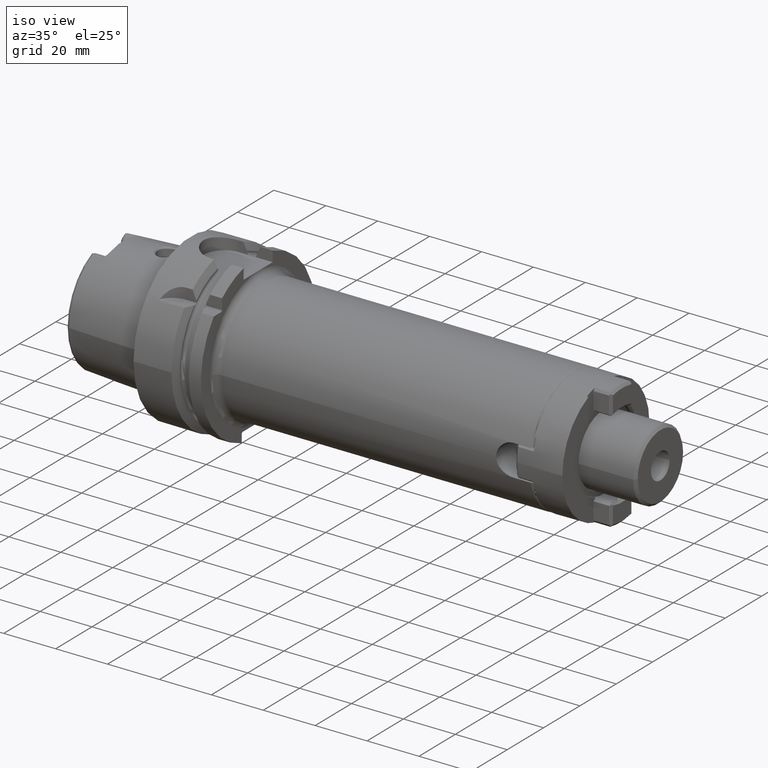
[diagram: clean part render]
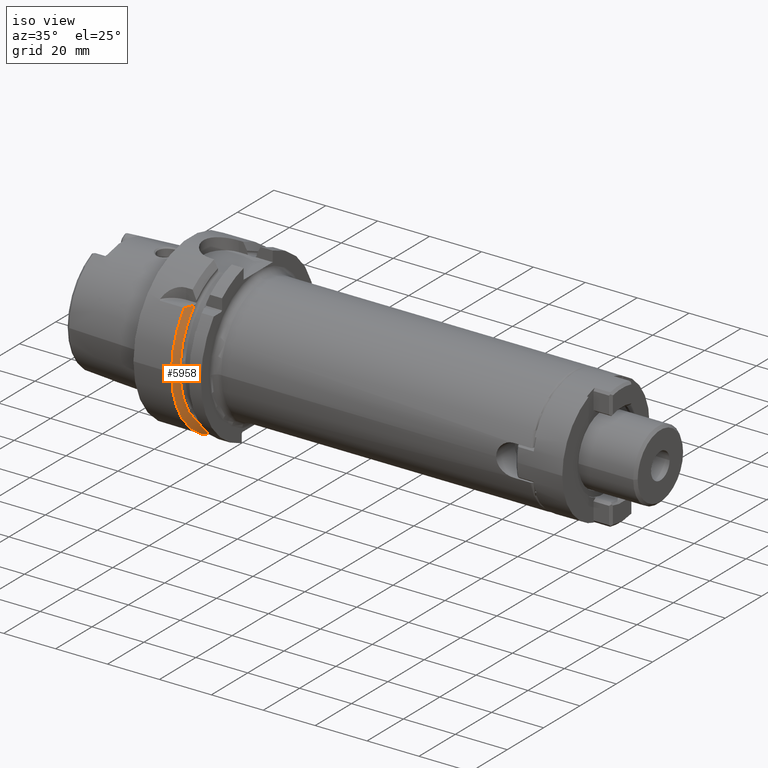
[diagram: same view with one face highlighted and labeled with its STEP entity id]
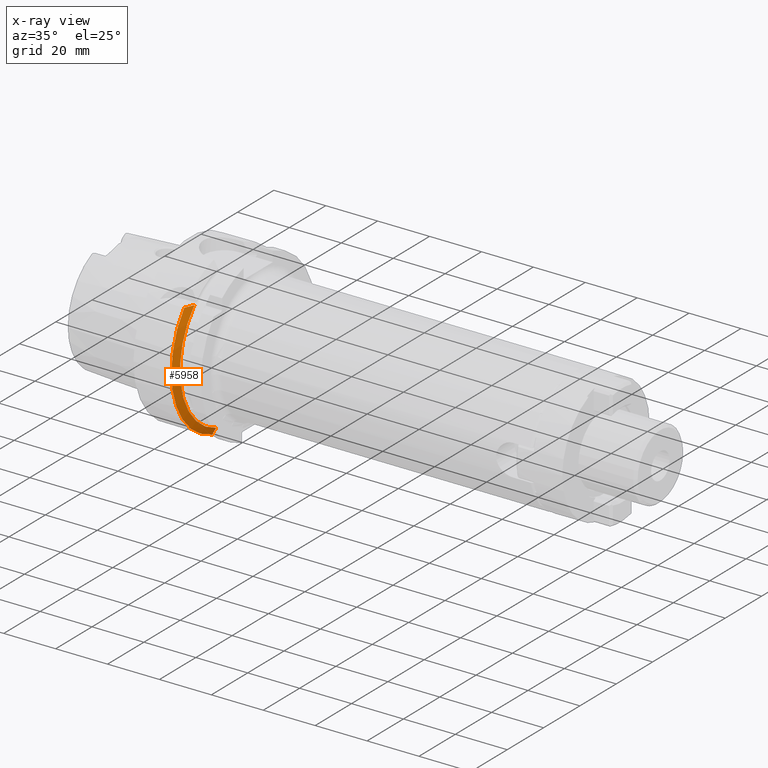
[diagram: x-ray of the same camera — body ghosted, the highlighted face saturated]
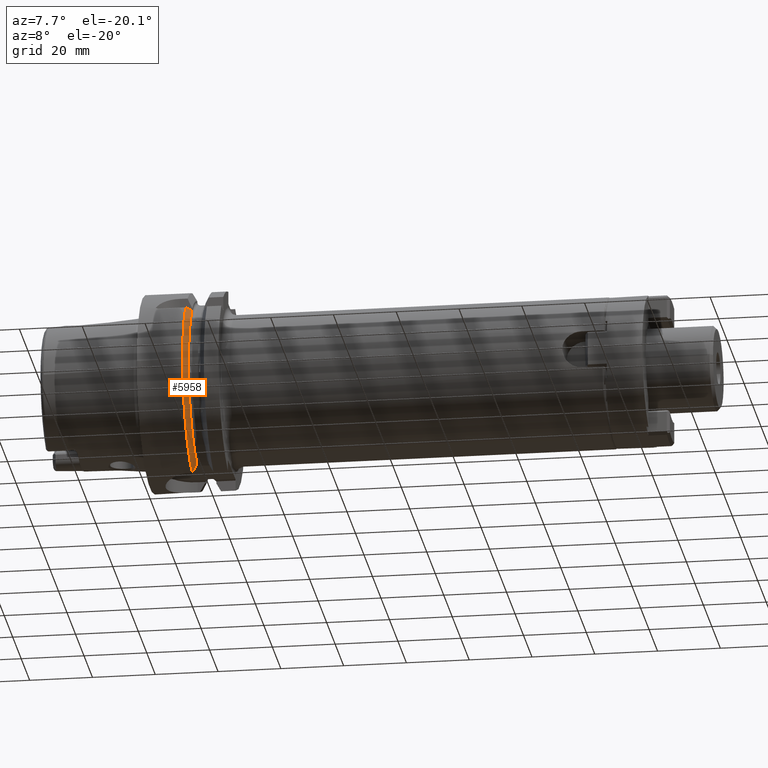
[diagram: same view with one face highlighted and labeled with its STEP entity id]
A machine part, iso view. The second image highlights one B-rep face of the part: STEP entity #5958.
The next image is the same camera in x-ray: the body ghosted, the highlighted face saturated — about 0% of this face is hidden behind the body in this view.
A second angle (auxiliary view) of the same face is appended — the face is thin or edge-on in the first view.
In plain terms, the highlighted conical surface has half-angle 60 deg.
Its self-contained STEP definition (entity closure, byte-faithful):
#1106=CARTESIAN_POINT('',(1.462250092524E1,0.E0,0.E0));
#1107=DIRECTION('',(1.E0,0.E0,0.E0));
#1108=DIRECTION('',(0.E0,-7.764663384879E-1,6.301587301587E-1));
#1109=AXIS2_PLACEMENT_3D('',#1106,#1107,#1108);
#2168=CARTESIAN_POINT('',(1.462250092524E1,0.E0,0.E0));
#2169=DIRECTION('',(1.E0,0.E0,0.E0));
#2170=DIRECTION('',(0.E0,-1.E0,0.E0));
#2171=AXIS2_PLACEMENT_3D('',#2168,#2169,#2170);
#2323=CARTESIAN_POINT('',(1.6125E1,-2.100115501712E1,1.985E1));
#2324=CARTESIAN_POINT('',(1.597384221917E1,-2.136140971936E1,1.985E1));
#2325=CARTESIAN_POINT('',(1.566115300621E1,-2.209786160622E1,1.985E1));
#2326=CARTESIAN_POINT('',(1.516255881786E1,-2.324577082409E1,1.985E1));
#2327=CARTESIAN_POINT('',(1.480632619355E1,-2.404863363206E1,1.985E1));
#2328=CARTESIAN_POINT('',(1.462250092524E1,-2.445868966237E1,1.985E1));
#2330=CARTESIAN_POINT('',(1.6125E1,0.E0,0.E0));
#2331=DIRECTION('',(1.E0,0.E0,0.E0));
#2332=DIRECTION('',(0.E0,-7.267440361428E-1,6.869083679290E-1));
#2333=AXIS2_PLACEMENT_3D('',#2330,#2331,#2332);
#2335=CARTESIAN_POINT('',(1.6125E1,-9.0175E0,-2.745461174016E1));
#2336=CARTESIAN_POINT('',(1.596600098125E1,-9.0175E0,-2.774448053791E1));
#2337=CARTESIAN_POINT('',(1.564270948849E1,-9.0175E0,-2.833297398512E1));
#2338=CARTESIAN_POINT('',(1.514210518984E1,-9.0175E0,-2.924158789478E1));
#2339=CARTESIAN_POINT('',(1.479749126019E1,-9.0175E0,-2.986536377611E1));
#2340=CARTESIAN_POINT('',(1.462250092524E1,-9.0175E0,-3.018169467989E1));
#3214=CARTESIAN_POINT('',(1.462250092524E1,-3.15E1,0.E0));
#3215=VERTEX_POINT('',#3214);
#3374=CARTESIAN_POINT('',(1.462250092524E1,-9.0175E0,-3.018169467989E1));
#3375=VERTEX_POINT('',#3374);
#3380=CARTESIAN_POINT('',(1.6125E1,-9.0175E0,-2.745461174016E1));
#3382=VERTEX_POINT('',#3380);
#3416=CARTESIAN_POINT('',(1.6125E1,-2.100115501712E1,1.985E1));
#3418=VERTEX_POINT('',#3416);
#3432=VERTEX_POINT('',#2328);
#5945=CARTESIAN_POINT('',(1.537375046262E1,0.E0,0.E0));
#5946=DIRECTION('',(-1.E0,0.E0,0.E0));
#5947=DIRECTION('',(0.E0,1.E0,0.E0));
#5948=AXIS2_PLACEMENT_3D('',#5945,#5946,#5947);
#5949=CONICAL_SURFACE('',#5948,3.019879763210E1,6.E1);
#5950=ORIENTED_EDGE('',*,*,#5884,.F.);
#5951=ORIENTED_EDGE('',*,*,#5660,.T.);
#5953=ORIENTED_EDGE('',*,*,#5952,.T.);
#5954=ORIENTED_EDGE('',*,*,#5772,.F.);
#5955=ORIENTED_EDGE('',*,*,#4806,.F.);
#5956=EDGE_LOOP('',(#5950,#5951,#5953,#5954,#5955));
#5957=FACE_OUTER_BOUND('',#5956,.F.);
#5958=ADVANCED_FACE('',(#5957),#5949,.T.);
#1110=CIRCLE('',#1109,3.15E1);
#2172=CIRCLE('',#2171,3.15E1);
#2329=B_SPLINE_CURVE_WITH_KNOTS('',3,(#2323,#2324,#2325,#2326,#2327,#2328),
.UNSPECIFIED.,.F.,.F.,(4,1,1,4),(0.E0,3.333333333333E-1,6.666666666667E-1,1.E0),
.UNSPECIFIED.);
#2334=CIRCLE('',#2333,2.889759526419E1);
#2341=B_SPLINE_CURVE_WITH_KNOTS('',3,(#2335,#2336,#2337,#2338,#2339,#2340),
.UNSPECIFIED.,.F.,.F.,(4,1,1,4),(0.E0,3.333333333333E-1,6.666666666667E-1,1.E0),
.UNSPECIFIED.);
#4806=EDGE_CURVE('',#3432,#3215,#1110,.T.);
#5660=EDGE_CURVE('',#3418,#3382,#2334,.T.);
#5772=EDGE_CURVE('',#3215,#3375,#2172,.T.);
#5884=EDGE_CURVE('',#3418,#3432,#2329,.T.);
#5952=EDGE_CURVE('',#3382,#3375,#2341,.T.);